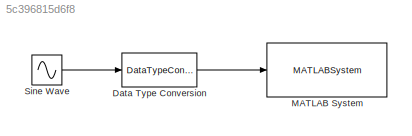
MODEL slx_5c396815d6f8
KIND model
CONFIG AbsTol = auto
CONFIG FixedStep = auto
CONFIG MaxStep = auto
CONFIG MinStep = auto
CONFIG RelTol = 1e-3
CONFIG SampleTimeConstraint = Unconstrained
CONFIG Solver = FixedStepAuto
CONFIG SolverMode = Auto
CONFIG SolverName = FixedStepAuto
CONFIG StartTime = 0.0
CONFIG StopTime = 10.0
BLOCK [DataTypeConversion] Data Type Conversion
  OutDataTypeStr = uint8
  RndMeth = Floor
  SaturateOnIntegerOverflow = off
BLOCK [MATLABSystem] MATLAB System
  Divisor = 375
  MaskDisplay = disp('PWM Write (18)');\nport_label('input',1,'u');
  MaskType = PwmOutput
  Mode = 0
  Pin = 18
  Ports = [1]
  Range = 1024
  System = PwmOutput
BLOCK [Sin] Sine Wave
  Amplitude = 0
  Bias = 70
  Frequency = 5
  Phase = pi/2
  Ports = [0, 1]
  SampleTime = 1
LINE Data Type Conversion:1 -> MATLAB System:1
LINE Sine Wave:1 -> Data Type Conversion:1
